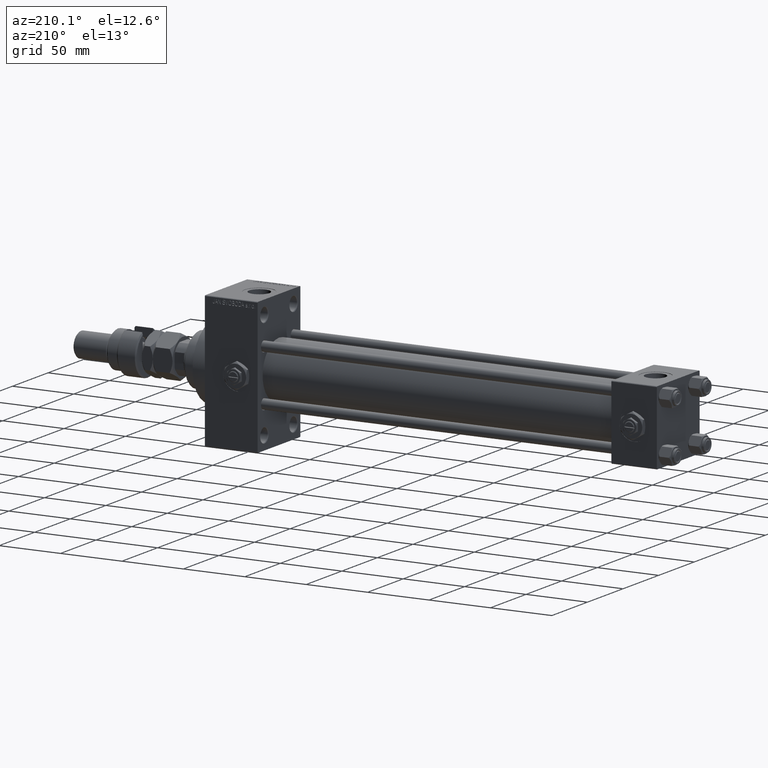
[diagram: clean part render]
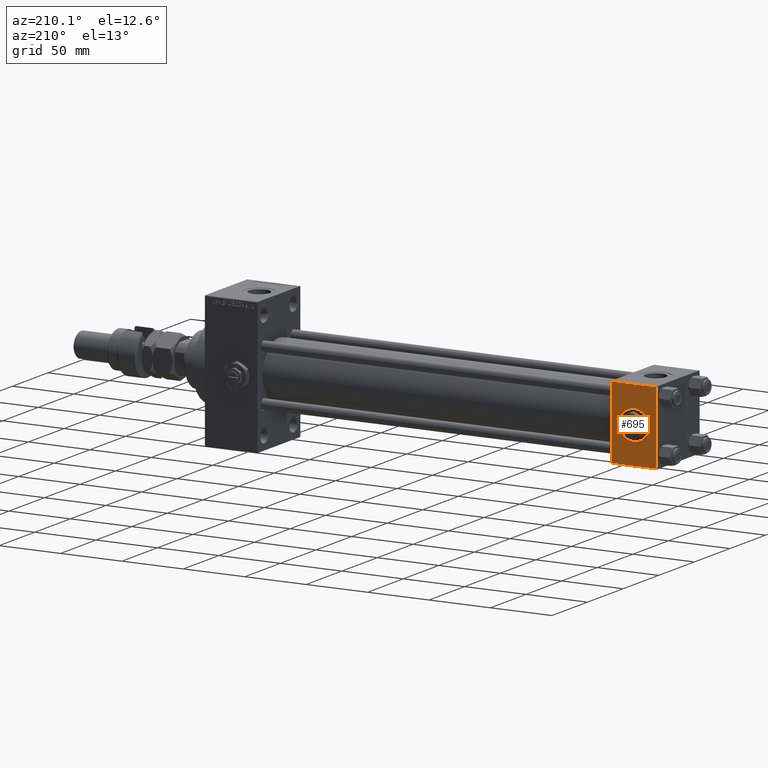
[diagram: same view with one face highlighted and labeled with its STEP entity id]
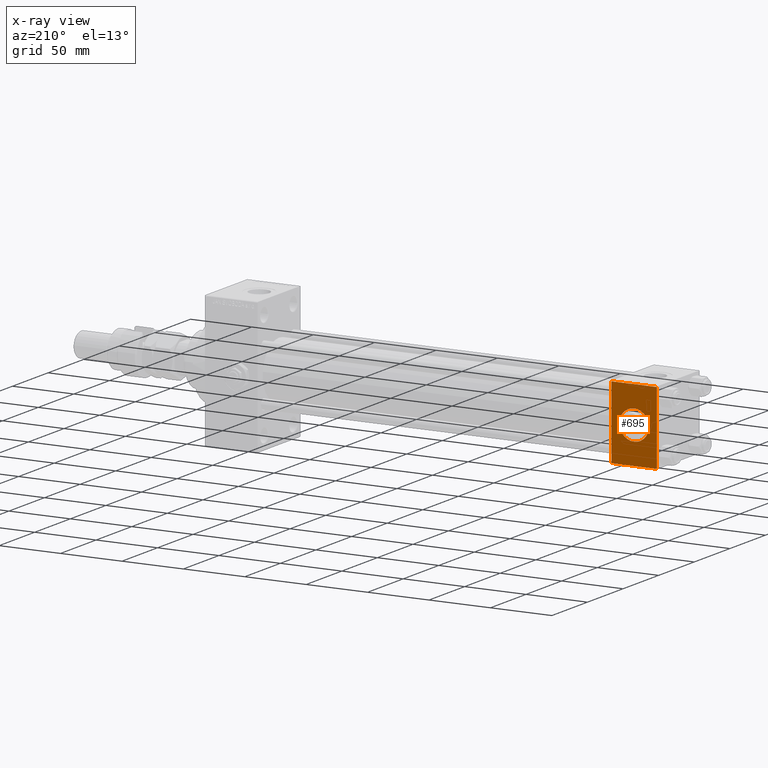
[diagram: x-ray of the same camera — body ghosted, the highlighted face saturated]
A machine part, auxiliary view. The second image highlights one B-rep face of the part: STEP entity #695.
The next image is the same camera in x-ray: the body ghosted, the highlighted face saturated — about 0% of this face is hidden behind the body in this view.
In plain terms, the highlighted planar face has unit normal (0, 1, 0).
Its self-contained STEP definition (entity closure, byte-faithful):
#695 = ADVANCED_FACE ( 'NONE', ( #42183, #22164 ), #18207, .T. ) ;
#1473 = LINE ( 'NONE', #45223, #25704 ) ;
#2440 = DIRECTION ( 'NONE',  ( 0.000000000000000000, 0.000000000000000000, -1.000000000000000000 ) ) ;
#2455 = VERTEX_POINT ( 'NONE', #22238 ) ;
#6405 = LINE ( 'NONE', #46450, #9689 ) ;
#6663 = ORIENTED_EDGE ( 'NONE', *, *, #47893, .T. ) ;
#6964 = AXIS2_PLACEMENT_3D ( 'NONE', #42093, #50291, #26531 ) ;
#7080 = DIRECTION ( 'NONE',  ( 0.000000000000000000, 1.000000000000000000, 0.000000000000000000 ) ) ;
#7988 = ORIENTED_EDGE ( 'NONE', *, *, #26829, .F. ) ;
#8941 = CARTESIAN_POINT ( 'NONE',  ( 37.00000000000000000, 29.99999999999999289, 29.50000000000000000 ) ) ;
#9294 = VECTOR ( 'NONE', #36582, 1000.000000000000000 ) ;
#9466 = EDGE_LOOP ( 'NONE', ( #20058, #7988 ) ) ;
#9542 = VERTEX_POINT ( 'NONE', #33496 ) ;
#9689 = VECTOR ( 'NONE', #2440, 1000.000000000000000 ) ;
#10298 = DIRECTION ( 'NONE',  ( -0.000000000000000000, 1.000000000000000000, 0.000000000000000000 ) ) ;
#10463 = ORIENTED_EDGE ( 'NONE', *, *, #50592, .F. ) ;
#14046 = CARTESIAN_POINT ( 'NONE',  ( 0.000000000000000000, 29.99999999999999289, 29.50000000000000000 ) ) ;
#14248 = CARTESIAN_POINT ( 'NONE',  ( 37.00000000000000000, 29.99999999999999289, 30.00000000000000000 ) ) ;
#17382 = DIRECTION ( 'NONE',  ( 1.000000000000000000, 0.000000000000000000, 0.000000000000000000 ) ) ;
#18207 = PLANE ( 'NONE',  #46330 ) ;
#19014 = EDGE_CURVE ( 'NONE', #9542, #48013, #25419, .T. ) ;
#19249 = EDGE_LOOP ( 'NONE', ( #21466, #31504, #10463, #6663 ) ) ;
#19725 = DIRECTION ( 'NONE',  ( 0.000000000000000000, 0.000000000000000000, 1.000000000000000000 ) ) ;
#20011 = CARTESIAN_POINT ( 'NONE',  ( 37.00000000000000000, 29.99999999999999289, -29.50000000000000000 ) ) ;
#20058 = ORIENTED_EDGE ( 'NONE', *, *, #37830, .F. ) ;
#20118 = CIRCLE ( 'NONE', #49588, 12.00000000000000178 ) ;
#20162 = VERTEX_POINT ( 'NONE', #30684 ) ;
#20727 = CARTESIAN_POINT ( 'NONE',  ( 0.000000000000000000, 29.99999999999999289, -29.50000000000000000 ) ) ;
#21466 = ORIENTED_EDGE ( 'NONE', *, *, #52017, .T. ) ;
#22164 = FACE_OUTER_BOUND ( 'NONE', #19249, .T. ) ;
#22238 = CARTESIAN_POINT ( 'NONE',  ( 18.50000000000000000, 29.99999999999999289, 12.00000000000000178 ) ) ;
#24758 = LINE ( 'NONE', #8941, #48320 ) ;
#25419 = LINE ( 'NONE', #20011, #9294 ) ;
#25704 = VECTOR ( 'NONE', #42293, 1000.000000000000000 ) ;
#26361 = DIRECTION ( 'NONE',  ( 0.000000000000000000, -0.000000000000000000, 1.000000000000000000 ) ) ;
#26531 = DIRECTION ( 'NONE',  ( 0.000000000000000000, 0.000000000000000000, 1.000000000000000000 ) ) ;
#26829 = EDGE_CURVE ( 'NONE', #37314, #2455, #41463, .T. ) ;
#30684 = CARTESIAN_POINT ( 'NONE',  ( 37.00000000000000000, 29.99999999999999289, 29.50000000000000000 ) ) ;
#31504 = ORIENTED_EDGE ( 'NONE', *, *, #19014, .T. ) ;
#31945 = CARTESIAN_POINT ( 'NONE',  ( 18.50000000000000000, 29.99999999999999289, -12.00000000000000178 ) ) ;
#33496 = CARTESIAN_POINT ( 'NONE',  ( 37.00000000000000000, 29.99999999999999289, -29.50000000000000000 ) ) ;
#36582 = DIRECTION ( 'NONE',  ( -1.000000000000000000, 0.000000000000000000, 0.000000000000000000 ) ) ;
#37314 = VERTEX_POINT ( 'NONE', #31945 ) ;
#37830 = EDGE_CURVE ( 'NONE', #2455, #37314, #20118, .T. ) ;
#39478 = CARTESIAN_POINT ( 'NONE',  ( 18.50000000000000000, 29.99999999999999289, 0.000000000000000000 ) ) ;
#41463 = CIRCLE ( 'NONE', #6964, 12.00000000000000178 ) ;
#42093 = CARTESIAN_POINT ( 'NONE',  ( 18.50000000000000000, 29.99999999999999289, 0.000000000000000000 ) ) ;
#42183 = FACE_BOUND ( 'NONE', #9466, .T. ) ;
#42293 = DIRECTION ( 'NONE',  ( 0.000000000000000000, 0.000000000000000000, -1.000000000000000000 ) ) ;
#45223 = CARTESIAN_POINT ( 'NONE',  ( 37.00000000000000000, 29.99999999999999289, 30.00000000000000000 ) ) ;
#46274 = VERTEX_POINT ( 'NONE', #14046 ) ;
#46330 = AXIS2_PLACEMENT_3D ( 'NONE', #14248, #10298, #26361 ) ;
#46450 = CARTESIAN_POINT ( 'NONE',  ( 0.000000000000000000, 29.99999999999999289, 30.00000000000000000 ) ) ;
#47893 = EDGE_CURVE ( 'NONE', #46274, #20162, #24758, .T. ) ;
#48013 = VERTEX_POINT ( 'NONE', #20727 ) ;
#48320 = VECTOR ( 'NONE', #17382, 1000.000000000000000 ) ;
#49588 = AXIS2_PLACEMENT_3D ( 'NONE', #39478, #7080, #19725 ) ;
#50291 = DIRECTION ( 'NONE',  ( 0.000000000000000000, 1.000000000000000000, 0.000000000000000000 ) ) ;
#50592 = EDGE_CURVE ( 'NONE', #46274, #48013, #6405, .T. ) ;
#52017 = EDGE_CURVE ( 'NONE', #20162, #9542, #1473, .T. ) ;